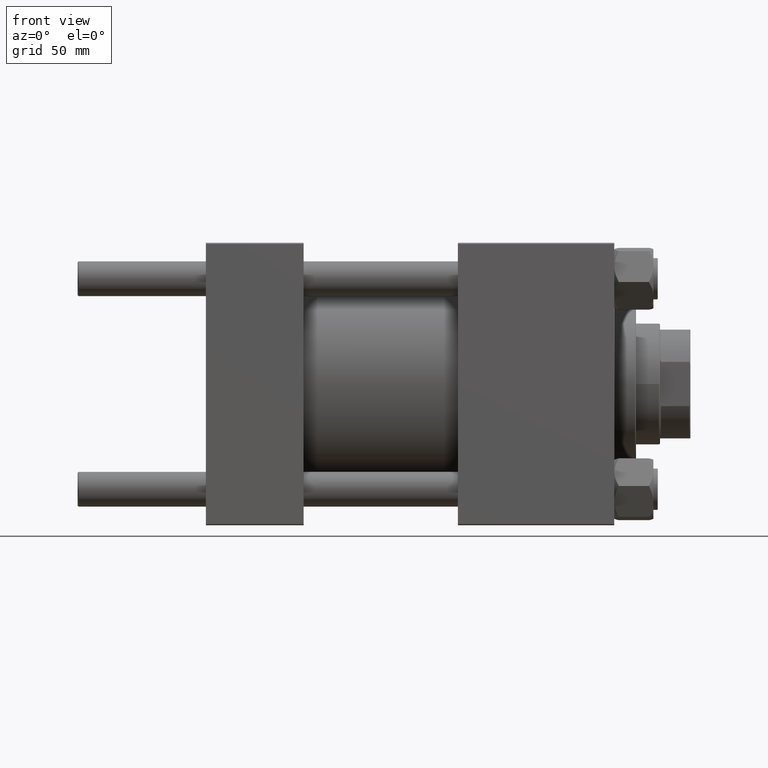
[diagram: clean part render]
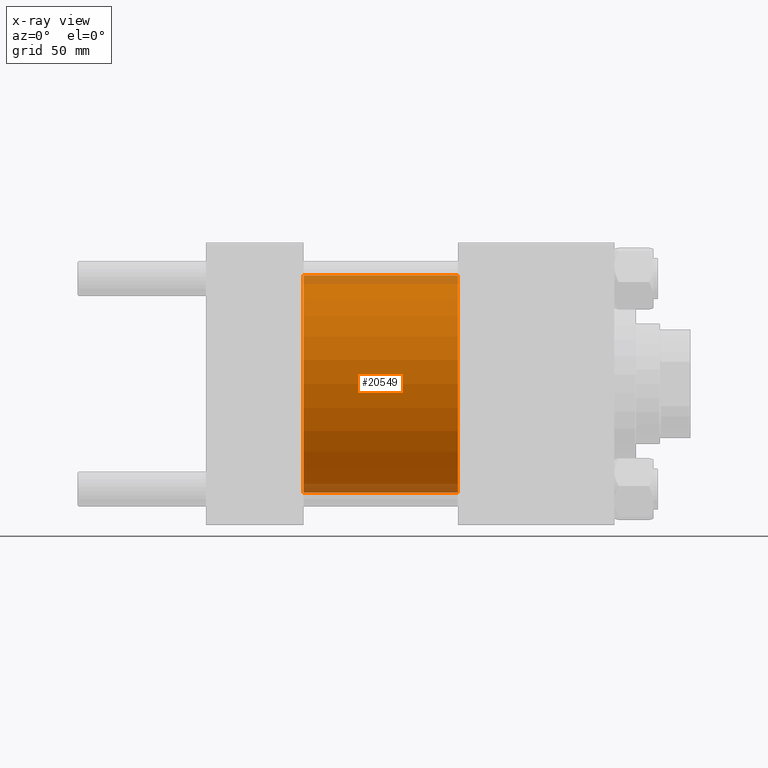
[diagram: x-ray — body ghosted, one internal face saturated and labeled with its STEP entity id]
A machine part, front view, then the same camera in x-ray: the body is ghosted and one INTERNAL B-rep face — a face not visible from any outside direction — is saturated and labeled: STEP entity #20549.
In plain terms, the highlighted cylindrical surface (partial cylindrical patch) has radius 50 mm, axis along (-1, -0, -0).
Its self-contained STEP definition (entity closure, byte-faithful):
#182 = DIRECTION ( 'NONE',  ( 0.000000000000000000, 0.000000000000000000, 1.000000000000000000 ) ) ;
#460 = VERTEX_POINT ( 'NONE', #32946 ) ;
#1783 = EDGE_CURVE ( 'NONE', #460, #48395, #12646, .T. ) ;
#4014 = DIRECTION ( 'NONE',  ( -1.000000000000000000, -0.000000000000000000, -0.000000000000000000 ) ) ;
#4490 = DIRECTION ( 'NONE',  ( -1.000000000000000000, -0.000000000000000000, -0.000000000000000000 ) ) ;
#5581 = AXIS2_PLACEMENT_3D ( 'NONE', #10241, #6418, #40941 ) ;
#5628 = DIRECTION ( 'NONE',  ( -1.000000000000000000, -0.000000000000000000, -0.000000000000000000 ) ) ;
#5979 = DIRECTION ( 'NONE',  ( 0.000000000000000000, 0.000000000000000000, -1.000000000000000000 ) ) ;
#6418 = DIRECTION ( 'NONE',  ( 1.000000000000000000, 0.000000000000000000, 0.000000000000000000 ) ) ;
#7049 = VERTEX_POINT ( 'NONE', #37517 ) ;
#8862 = CIRCLE ( 'NONE', #5581, 50.00000000000000000 ) ;
#9738 = EDGE_CURVE ( 'NONE', #7049, #43778, #36319, .T. ) ;
#10232 = CARTESIAN_POINT ( 'NONE',  ( 45.00000000000000000, 6.123233995736766085E-15, -50.00000000000000000 ) ) ;
#10241 = CARTESIAN_POINT ( 'NONE',  ( 115.9999999999999858, 0.000000000000000000, 0.000000000000000000 ) ) ;
#12646 = LINE ( 'NONE', #31351, #39018 ) ;
#13145 = DIRECTION ( 'NONE',  ( 1.000000000000000000, 0.000000000000000000, 0.000000000000000000 ) ) ;
#13640 = ORIENTED_EDGE ( 'NONE', *, *, #27867, .F. ) ;
#17581 = ORIENTED_EDGE ( 'NONE', *, *, #38240, .T. ) ;
#17599 = CIRCLE ( 'NONE', #46169, 50.00000000000000000 ) ;
#20479 = ORIENTED_EDGE ( 'NONE', *, *, #1783, .F. ) ;
#20549 = ADVANCED_FACE ( 'NONE', ( #46440 ), #38526, .F. ) ;
#20823 = CARTESIAN_POINT ( 'NONE',  ( 45.00000000000000000, 0.000000000000000000, 0.000000000000000000 ) ) ;
#23817 = EDGE_LOOP ( 'NONE', ( #17581, #47866, #13640, #20479 ) ) ;
#25060 = CARTESIAN_POINT ( 'NONE',  ( 115.9999999999999858, 6.123233995736766085E-15, -50.00000000000000000 ) ) ;
#27271 = CARTESIAN_POINT ( 'NONE',  ( 115.9999999999999858, 0.000000000000000000, 0.000000000000000000 ) ) ;
#27867 = EDGE_CURVE ( 'NONE', #48395, #43778, #17599, .T. ) ;
#31351 = CARTESIAN_POINT ( 'NONE',  ( 115.9999999999999858, 0.000000000000000000, 50.00000000000000000 ) ) ;
#32780 = VECTOR ( 'NONE', #5628, 1000.000000000000000 ) ;
#32946 = CARTESIAN_POINT ( 'NONE',  ( 115.9999999999999858, 0.000000000000000000, 50.00000000000000000 ) ) ;
#36319 = LINE ( 'NONE', #25060, #32780 ) ;
#37517 = CARTESIAN_POINT ( 'NONE',  ( 115.9999999999999858, 6.123233995736766085E-15, -50.00000000000000000 ) ) ;
#38240 = EDGE_CURVE ( 'NONE', #460, #7049, #8862, .T. ) ;
#38526 = CYLINDRICAL_SURFACE ( 'NONE', #46754, 50.00000000000000000 ) ;
#38741 = CARTESIAN_POINT ( 'NONE',  ( 45.00000000000000000, 0.000000000000000000, 50.00000000000000000 ) ) ;
#39018 = VECTOR ( 'NONE', #4490, 1000.000000000000000 ) ;
#40941 = DIRECTION ( 'NONE',  ( 0.000000000000000000, 0.000000000000000000, -1.000000000000000000 ) ) ;
#43778 = VERTEX_POINT ( 'NONE', #10232 ) ;
#46169 = AXIS2_PLACEMENT_3D ( 'NONE', #20823, #13145, #5979 ) ;
#46440 = FACE_OUTER_BOUND ( 'NONE', #23817, .T. ) ;
#46754 = AXIS2_PLACEMENT_3D ( 'NONE', #27271, #4014, #182 ) ;
#47866 = ORIENTED_EDGE ( 'NONE', *, *, #9738, .T. ) ;
#48395 = VERTEX_POINT ( 'NONE', #38741 ) ;